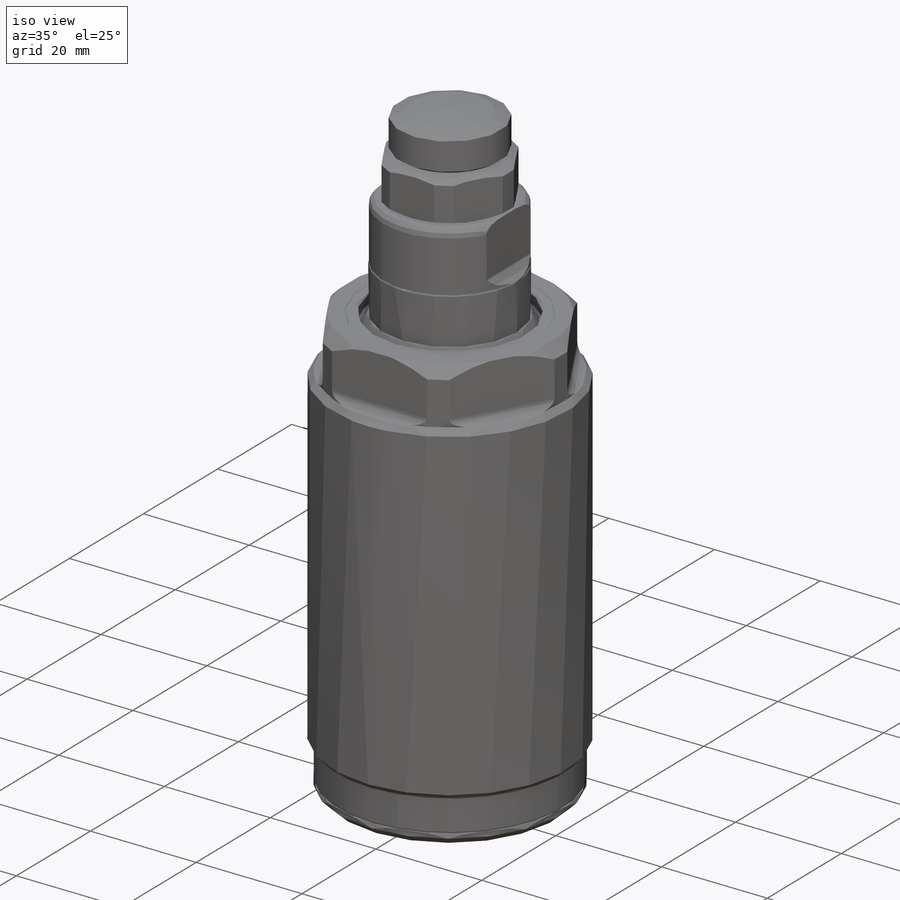
[diagram: iso view]
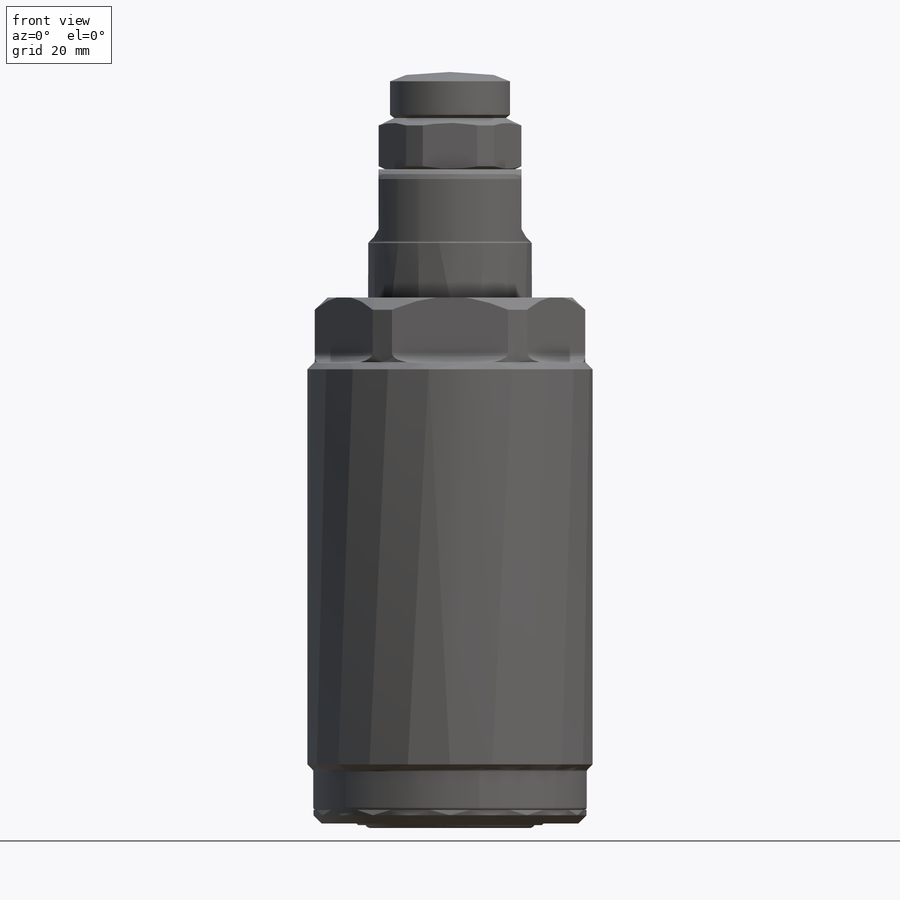
[diagram: front view]
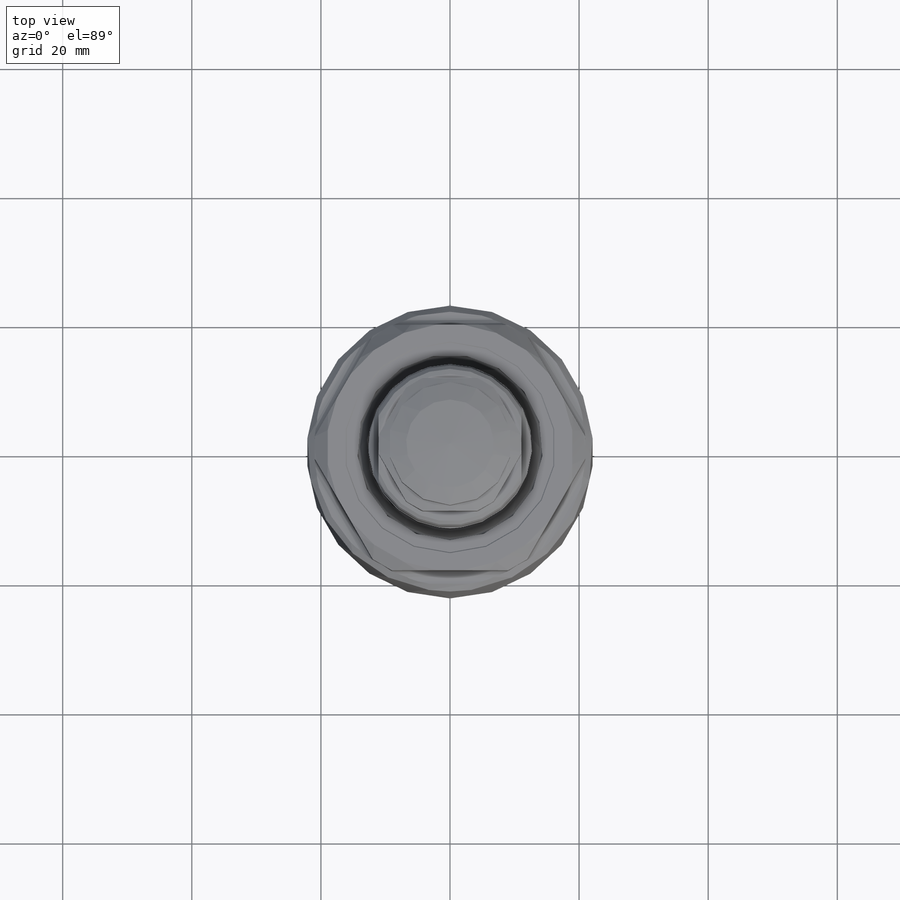
[diagram: top view]
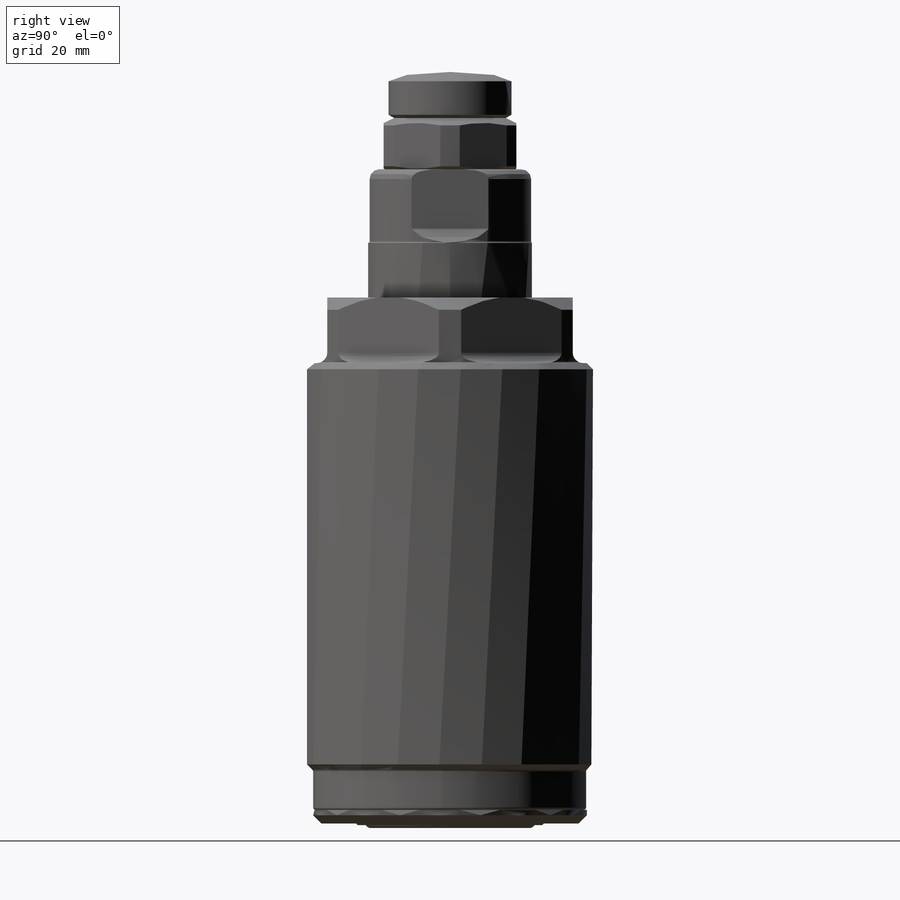
[diagram: right view]
SOLIDWORKS PART (.sldprt)
format: sldprt  version: not decoded by parser v0  size: 614,400 bytes
history: native  units: mm
features: sketch x11, revolve x7, cut_extrude x4, fillet x4, chamfer x2, material x1 (+11 scaffold rows collapsed)
feature tree (40):
  scaffold x11  (default folders/planes/origin — collapsed)
  material  "Alloy Steel"
  sketch  "Sketch2"  dims[c1.D3=0.381mm c1.D6=0.381mm c1.D1=42.418mm c1.D2=44.2976mm c2.D3=8.5725mm c2.D4=5.9436mm c2.D5=~0.672173mm c3.D5=45.0deg c3.D7=79.375mm c3.D8=0.762mm c3.D9=0.762mm c4.D9=45.0deg c4.D10=31.75mm c4.D11=3.302mm c4.D8=1.905mm c5.D9=11.1252mm c5.D12=42.0624mm c5.D13=1.905mm c6.D13=45.0deg]
  revolve  "Revolve1"  Angle=360deg
  sketch  "Sketch4"  dims[D2=22.86mm D1=38.0238mm]
  cut_extrude  "Cut-Extrude1"  Depth=10.16mm
  sketch  "Sketch5"  dims[c1.D1=0.762mm c1.D7=0.254mm c1.D9=0.254mm c1.D8=0.254mm c1.D2=2.286mm c1.D3=9.0678mm c1.D4=10.033mm c1.D5=14.4018mm c1.D6=0.508mm c2.D8=~0.591123mm c3.D8=30.0deg c3.D9=0.889mm c3.D10=47.3456mm c3.D1=0.508mm c3.D2=~3.728165mm c4.D2=30.0deg c4.D3=0.127mm c4.D4=3.175mm c4.D5=24.638mm c4.D6=26.416mm c4.D7=31.9024mm c4.D9=1.6002mm]
  revolve  "Revolve3"  Angle=360deg
  sketch  "Sketch6"  dims[c1.D7=1.4986mm c1.D1=0.127mm c1.D2=1.4732mm c1.D3=0.4826mm c1.D4=1.905mm c1.D5=0.4318mm c1.D6=17.145mm c1.D8=0.7112mm c1.D9=10.9982mm c2.D1=2.1082mm c2.D2=~0.636266mm c3.D2=45.0deg c3.D3=0.254mm c3.D4=28.575mm c3.D5=42.418mm]
  revolve  "Revolve4"  Angle=360deg
  chamfer  "Chamfer2"  Distance=0.508mm Angle=45deg
  fillet  "Fillet10"  Radius=1.6002mm
  chamfer  "Chamfer3"  Distance=1.27mm Angle=45deg
  sketch  "Sketch7"  dims[D1=0.0mm D2=19.8755mm D3=25.146mm D4=25.3746mm D5=11.43mm]
  revolve  "Revolve5"  Angle=360deg
  fillet  "Fillet11"  Radius=0.381mm
  fillet  "Fillet12"  Radius=1.524mm
  sketch  "Sketch8"  dims[c1.D1=1.27mm c1.D2=22.1488mm c1.D3=~0.541222mm c2.D3=30.0deg c2.D4=1.6256mm c2.D5=11.43mm c2.D6=0.889mm]
  cut_extrude  "Cut-Extrude2"  Depth=25.4mm
  fillet  "Fillet13"  Radius=0.508mm
  sketch  "Sketch9"  dims[c1.D1=10.1346mm c1.D2=6.3246mm c1.D3=7.9248mm c1.D4=~1.244806mm c2.D4=25.0deg c2.D5=1.143mm c2.D6=22.225mm]
  revolve  "Revolve13"  Angle=360deg
  sketch  "Sketch10"  dims[D1=20.574mm]
  cut_extrude  "Cut-Extrude3"  Depth=25.4mm
  sketch  "Sketch11"  dims[D1=26.7716mm]
  cut_extrude  "Cut-Extrude4"  Depth=1.3208mm
  sketch  "Sketch12"  dims[D1=1.778mm D2=24.638mm D3=0.889mm]
  revolve  "Revolve14"  Angle=360deg
  sketch  "Sketch13"  dims[c1.D7=50.8mm c1.D1=7.1374mm c1.D2=~1.226372mm c2.D2=30.0deg c2.D3=19.05mm c2.D4=~1.868014mm c3.D4=~13.172553deg c4.D4=0.508mm c4.D5=~1.868014mm c5.D5=20.0deg c5.D6=0.4572mm c5.D8=~7.521429mm c6.D8=4.0deg c6.D9=6.8072mm c6.D6=0.4572mm c6.D5=0.4572mm c7.D6=9.525mm c7.D5=0.4572mm c8.D6=~2.892222mm c9.D6=20.0deg c9.D8=9.525mm c10.D8=4.0deg c10.D9=6.8072mm c11.D8=9.525mm c12.D8=4.0deg c12.D9=3.556mm c13.D8=2.7178mm]
  revolve  "Revolve15"  Angle=360deg
decode coverage: 28 of 28 modeling features carry decoded parameters
note: ~ marks probable driven/reference dimensions
note: suppression state not decoded; provenance and decode notes live in map.json
